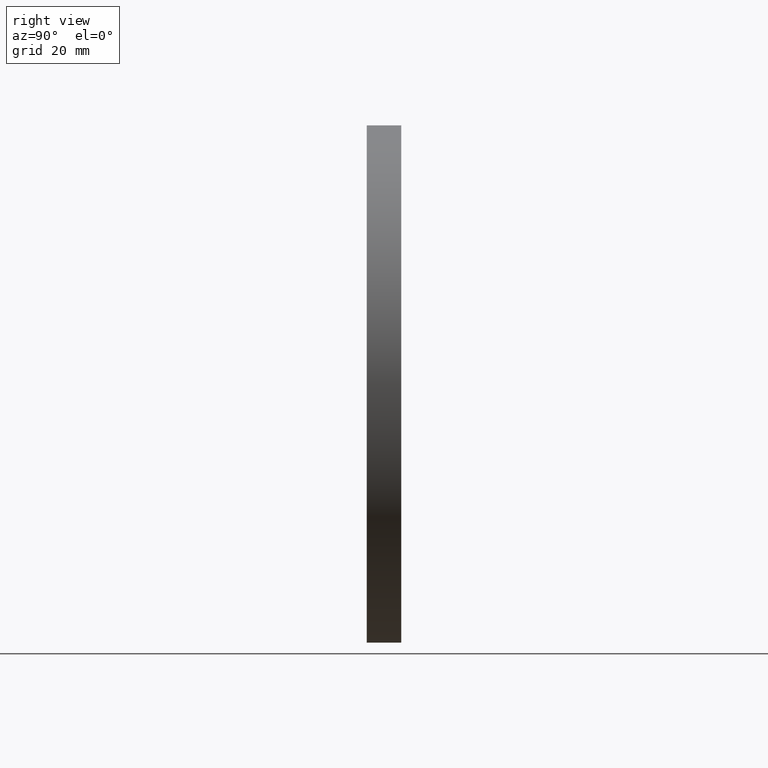
[diagram: clean part render]
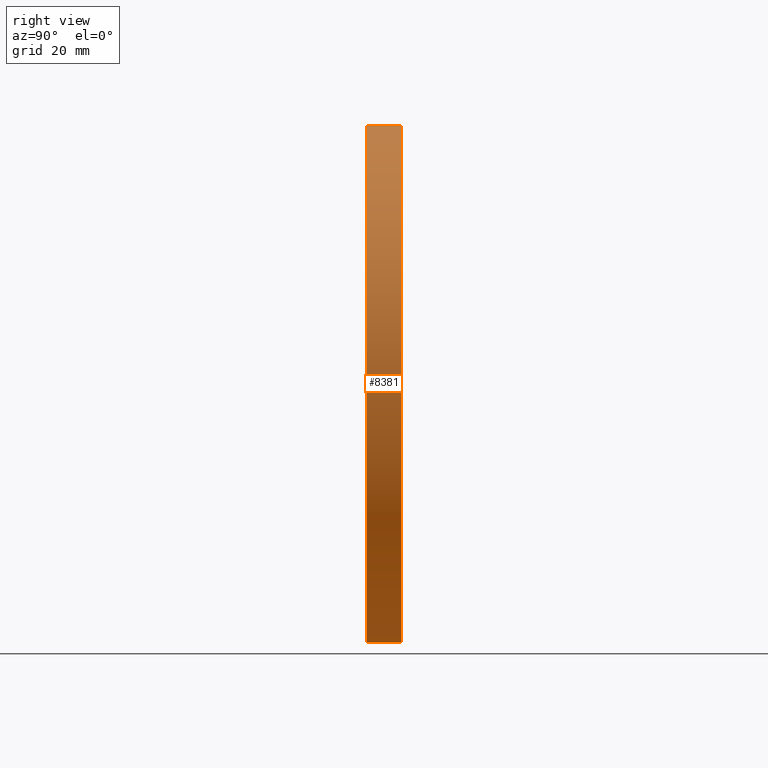
[diagram: same view with one face highlighted and labeled with its STEP entity id]
A machine part, right view. The second image highlights one B-rep face of the part: STEP entity #8381.
In plain terms, the highlighted cylindrical surface (partial cylindrical patch) has radius 60 mm, axis along (-0, -1, -0).
Its self-contained STEP definition (entity closure, byte-faithful):
#36 = AXIS2_PLACEMENT_3D ( 'NONE', #2269, #8871, #5107 ) ;
#56 = FACE_OUTER_BOUND ( 'NONE', #8639, .T. ) ;
#158 = VERTEX_POINT ( 'NONE', #4154 ) ;
#1405 = LINE ( 'NONE', #7485, #7298 ) ;
#1804 = DIRECTION ( 'NONE',  ( -0.0000000000000000000, -1.000000000000000000, -0.0000000000000000000 ) ) ;
#2039 = EDGE_CURVE ( 'NONE', #10479, #158, #9505, .T. ) ;
#2269 = CARTESIAN_POINT ( 'NONE',  ( 0.0000000000000000000, 8.000000000000000000, 0.0000000000000000000 ) ) ;
#2394 = CARTESIAN_POINT ( 'NONE',  ( 0.0000000000000000000, 8.000000000000000000, -60.00000000000000000 ) ) ;
#2769 = CIRCLE ( 'NONE', #36, 60.00000000000000000 ) ;
#3086 = AXIS2_PLACEMENT_3D ( 'NONE', #7600, #5564, #4051 ) ;
#3200 = LINE ( 'NONE', #2394, #10433 ) ;
#4051 = DIRECTION ( 'NONE',  ( 0.0000000000000000000, 0.0000000000000000000, 1.000000000000000000 ) ) ;
#4154 = CARTESIAN_POINT ( 'NONE',  ( 0.0000000000000000000, 0.0000000000000000000, -60.00000000000000000 ) ) ;
#4580 = EDGE_CURVE ( 'NONE', #10492, #12179, #2769, .T. ) ;
#4629 = DIRECTION ( 'NONE',  ( -0.0000000000000000000, -1.000000000000000000, -0.0000000000000000000 ) ) ;
#4766 = ORIENTED_EDGE ( 'NONE', *, *, #4580, .F. ) ;
#5107 = DIRECTION ( 'NONE',  ( 0.0000000000000000000, 0.0000000000000000000, 1.000000000000000000 ) ) ;
#5342 = EDGE_CURVE ( 'NONE', #12179, #158, #3200, .T. ) ;
#5409 = CARTESIAN_POINT ( 'NONE',  ( 7.347880794884118400E-015, 8.000000000000000000, 60.00000000000000000 ) ) ;
#5564 = DIRECTION ( 'NONE',  ( 0.0000000000000000000, 1.000000000000000000, 0.0000000000000000000 ) ) ;
#6599 = AXIS2_PLACEMENT_3D ( 'NONE', #8449, #1804, #12128 ) ;
#7192 = DIRECTION ( 'NONE',  ( -0.0000000000000000000, -1.000000000000000000, -0.0000000000000000000 ) ) ;
#7298 = VECTOR ( 'NONE', #4629, 1000.000000000000000 ) ;
#7485 = CARTESIAN_POINT ( 'NONE',  ( 7.347880794884118400E-015, 8.000000000000000000, 60.00000000000000000 ) ) ;
#7600 = CARTESIAN_POINT ( 'NONE',  ( 0.0000000000000000000, 0.0000000000000000000, 0.0000000000000000000 ) ) ;
#8381 = ADVANCED_FACE ( 'NONE', ( #56 ), #9774, .T. ) ;
#8449 = CARTESIAN_POINT ( 'NONE',  ( 0.0000000000000000000, 8.000000000000000000, 0.0000000000000000000 ) ) ;
#8639 = EDGE_LOOP ( 'NONE', ( #4766, #11876, #10406, #11783 ) ) ;
#8655 = CARTESIAN_POINT ( 'NONE',  ( 0.0000000000000000000, 8.000000000000000000, -60.00000000000000000 ) ) ;
#8871 = DIRECTION ( 'NONE',  ( 0.0000000000000000000, 1.000000000000000000, 0.0000000000000000000 ) ) ;
#9505 = CIRCLE ( 'NONE', #3086, 60.00000000000000000 ) ;
#9774 = CYLINDRICAL_SURFACE ( 'NONE', #6599, 60.00000000000000000 ) ;
#10406 = ORIENTED_EDGE ( 'NONE', *, *, #2039, .T. ) ;
#10433 = VECTOR ( 'NONE', #7192, 1000.000000000000000 ) ;
#10479 = VERTEX_POINT ( 'NONE', #11100 ) ;
#10492 = VERTEX_POINT ( 'NONE', #5409 ) ;
#10508 = EDGE_CURVE ( 'NONE', #10492, #10479, #1405, .T. ) ;
#11100 = CARTESIAN_POINT ( 'NONE',  ( 7.347880794884118400E-015, 0.0000000000000000000, 60.00000000000000000 ) ) ;
#11783 = ORIENTED_EDGE ( 'NONE', *, *, #5342, .F. ) ;
#11876 = ORIENTED_EDGE ( 'NONE', *, *, #10508, .T. ) ;
#12128 = DIRECTION ( 'NONE',  ( 0.0000000000000000000, 0.0000000000000000000, -1.000000000000000000 ) ) ;
#12179 = VERTEX_POINT ( 'NONE', #8655 ) ;